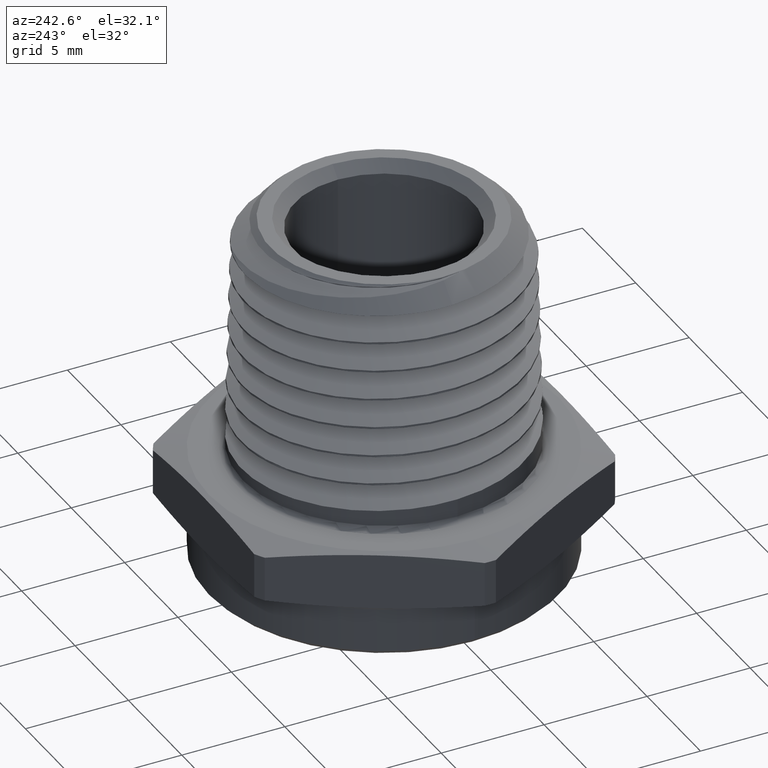
[diagram: clean part render]
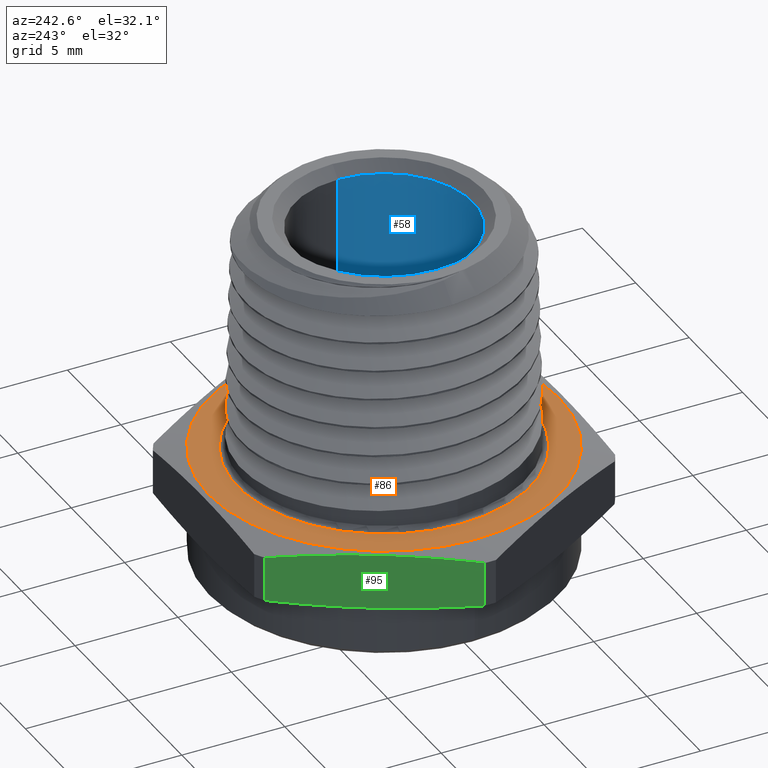
[diagram: same view with three faces highlighted in distinct colors, each labeled with its STEP entity id]
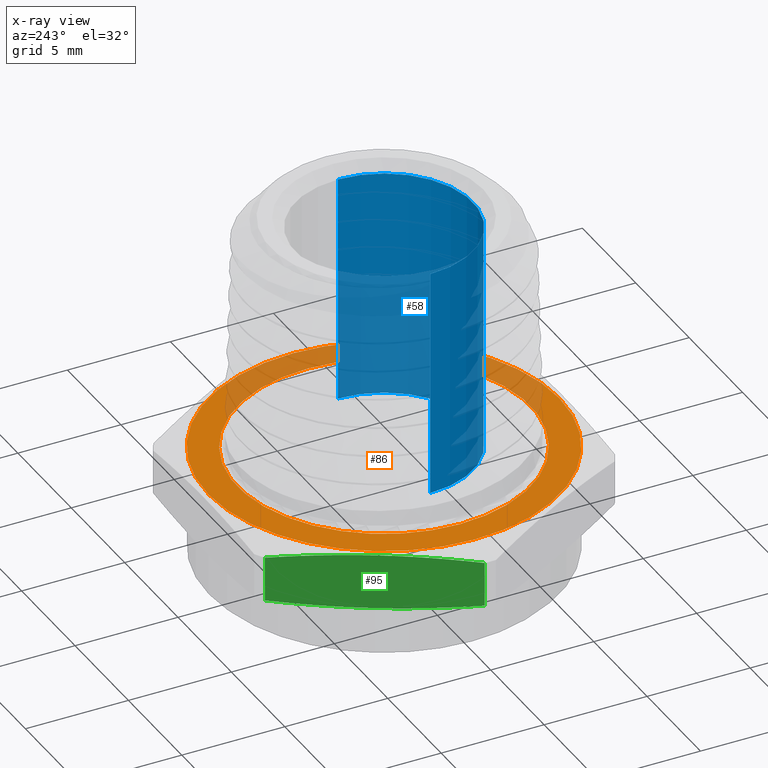
[diagram: x-ray of the same camera — body ghosted, the three highlighted faces saturated]
A machine part, auxiliary view with three faces highlighted in distinct colors.
The next image is the same camera in x-ray (body ghosted, the three faces saturated) — at least one of them is partly hidden behind the body in this view.
Their STEP definitions:

[orange] entity #86 — the highlighted planar face has unit normal (0, 0, 1).
#86 = ADVANCED_FACE ( 'NONE', ( #913, #914 ), #971, .T. ) ;
#153 = EDGE_CURVE ( 'NONE', #566, #567, #1995, .T. ) ;
#185 = EDGE_CURVE ( 'NONE', #572, #573, #2013, .T. ) ;
#186 = EDGE_CURVE ( 'NONE', #567, #566, #2012, .T. ) ;
#234 = EDGE_CURVE ( 'NONE', #573, #572, #2064, .T. ) ;
#513 = ORIENTED_EDGE ( 'NONE', *, *, #153, .T. ) ;
#514 = ORIENTED_EDGE ( 'NONE', *, *, #185, .F. ) ;
#515 = ORIENTED_EDGE ( 'NONE', *, *, #234, .F. ) ;
#534 = ORIENTED_EDGE ( 'NONE', *, *, #186, .T. ) ;
#566 = VERTEX_POINT ( 'NONE', #4101 ) ;
#567 = VERTEX_POINT ( 'NONE', #4102 ) ;
#572 = VERTEX_POINT ( 'NONE', #4099 ) ;
#573 = VERTEX_POINT ( 'NONE', #4106 ) ;
#684 = EDGE_LOOP ( 'NONE', ( #513, #534 ) ) ;
#685 = EDGE_LOOP ( 'NONE', ( #515, #514 ) ) ;
#817 = AXIS2_PLACEMENT_3D ( 'NONE', #969, #967, #973 ) ;
#864 = AXIS2_PLACEMENT_3D ( 'NONE', #1790, #1791, #1792 ) ;
#869 = AXIS2_PLACEMENT_3D ( 'NONE', #2754, #2755, #2756 ) ;
#870 = AXIS2_PLACEMENT_3D ( 'NONE', #2758, #2759, #2760 ) ;
#913 = FACE_OUTER_BOUND ( 'NONE', #685, .T. ) ;
#914 = FACE_BOUND ( 'NONE', #684, .T. ) ;
#967 = DIRECTION ( 'NONE',  ( -0.0000000000000000000, 0.0000000000000000000, 1.000000000000000000 ) ) ;
#969 = CARTESIAN_POINT ( 'NONE',  ( -0.1991858428704206800, -0.3449999999999998600, 0.1100000000000000000 ) ) ;
#971 = PLANE ( 'NONE',  #817 ) ;
#973 = DIRECTION ( 'NONE',  ( 1.000000000000000000, 0.0000000000000000000, 0.0000000000000000000 ) ) ;
#1790 = CARTESIAN_POINT ( 'NONE',  ( 0.0000000000000000000, 0.0000000000000000000, 0.1100000000000000000 ) ) ;
#1791 = DIRECTION ( 'NONE',  ( 0.0000000000000000000, -0.0000000000000000000, -1.000000000000000000 ) ) ;
#1792 = DIRECTION ( 'NONE',  ( 1.000000000000000000, 0.0000000000000000000, 0.0000000000000000000 ) ) ;
#1995 = CIRCLE ( 'NONE', #864, 0.2800000000000000300 ) ;
#2012 = CIRCLE ( 'NONE', #870, 0.2800000000000000300 ) ;
#2013 = CIRCLE ( 'NONE', #869, 0.3350000000000000200 ) ;
#2064 = CIRCLE ( 'NONE', #3689, 0.3350000000000000200 ) ;
#2754 = CARTESIAN_POINT ( 'NONE',  ( 1.347111479062086200E-017, 0.0000000000000000000, 0.1099999999999999700 ) ) ;
#2755 = DIRECTION ( 'NONE',  ( -1.224646799147351200E-016, -0.0000000000000000000, -1.000000000000000000 ) ) ;
#2756 = DIRECTION ( 'NONE',  ( -1.000000000000000000, 0.0000000000000000000, 1.019346266292635500E-016 ) ) ;
#2758 = CARTESIAN_POINT ( 'NONE',  ( 0.0000000000000000000, 0.0000000000000000000, 0.1100000000000000000 ) ) ;
#2759 = DIRECTION ( 'NONE',  ( 0.0000000000000000000, -0.0000000000000000000, -1.000000000000000000 ) ) ;
#2760 = DIRECTION ( 'NONE',  ( 1.000000000000000000, 0.0000000000000000000, 0.0000000000000000000 ) ) ;
#3396 = CARTESIAN_POINT ( 'NONE',  ( 1.347111479062086200E-017, 0.0000000000000000000, 0.1099999999999999700 ) ) ;
#3397 = DIRECTION ( 'NONE',  ( -1.224646799147351200E-016, -0.0000000000000000000, -1.000000000000000000 ) ) ;
#3398 = DIRECTION ( 'NONE',  ( -1.000000000000000000, 0.0000000000000000000, 1.019346266292635500E-016 ) ) ;
#3689 = AXIS2_PLACEMENT_3D ( 'NONE', #3396, #3397, #3398 ) ;
#4099 = CARTESIAN_POINT ( 'NONE',  ( 0.3350000000000000200, 4.102566777143634000E-017, 0.1099999999999999300 ) ) ;
#4101 = CARTESIAN_POINT ( 'NONE',  ( 0.2800000000000000300, 0.0000000000000000000, 0.1100000000000000300 ) ) ;
#4102 = CARTESIAN_POINT ( 'NONE',  ( -0.2800000000000000300, 3.429011037612588800E-017, 0.1100000000000000300 ) ) ;
#4106 = CARTESIAN_POINT ( 'NONE',  ( -0.3350000000000000200, 0.0000000000000000000, 0.1100000000000000000 ) ) ;

[blue] entity #58 — the highlighted cylindrical surface (partial cylindrical patch) has radius 4.318 mm, axis along (-0, -0, -1).
#58 = ADVANCED_FACE ( 'NONE', ( #748 ), #749, .F. ) ;
#134 = EDGE_CURVE ( 'NONE', #509, #541, #1323, .T. ) ;
#138 = EDGE_CURVE ( 'NONE', #509, #550, #1328, .T. ) ;
#139 = EDGE_CURVE ( 'NONE', #550, #555, #1329, .T. ) ;
#140 = EDGE_CURVE ( 'NONE', #541, #555, #1333, .T. ) ;
#509 = VERTEX_POINT ( 'NONE', #4066 ) ;
#541 = VERTEX_POINT ( 'NONE', #4080 ) ;
#550 = VERTEX_POINT ( 'NONE', #4086 ) ;
#555 = VERTEX_POINT ( 'NONE', #4091 ) ;
#659 = EDGE_LOOP ( 'NONE', ( #773, #775, #777, #776 ) ) ;
#748 = FACE_OUTER_BOUND ( 'NONE', #659, .T. ) ;
#749 = CYLINDRICAL_SURFACE ( 'NONE', #790, 0.1699999999999999800 ) ;
#773 = ORIENTED_EDGE ( 'NONE', *, *, #134, .F. ) ;
#775 = ORIENTED_EDGE ( 'NONE', *, *, #138, .T. ) ;
#776 = ORIENTED_EDGE ( 'NONE', *, *, #140, .F. ) ;
#777 = ORIENTED_EDGE ( 'NONE', *, *, #139, .T. ) ;
#790 = AXIS2_PLACEMENT_3D ( 'NONE', #5410, #5411, #5409 ) ;
#857 = AXIS2_PLACEMENT_3D ( 'NONE', #1745, #1746, #1747 ) ;
#859 = AXIS2_PLACEMENT_3D ( 'NONE', #1759, #1760, #1761 ) ;
#1323 = CIRCLE ( 'NONE', #857, 0.1699999999999999800 ) ;
#1328 = LINE ( 'NONE', #1749, #1332 ) ;
#1329 = CIRCLE ( 'NONE', #859, 0.1699999999999999800 ) ;
#1332 = VECTOR ( 'NONE', #1755, 39.37007874015748100 ) ;
#1333 = LINE ( 'NONE', #1756, #1335 ) ;
#1335 = VECTOR ( 'NONE', #1754, 39.37007874015748100 ) ;
#1745 = CARTESIAN_POINT ( 'NONE',  ( 7.944211343352838500E-017, 0.0000000000000000000, 0.5500000000000000400 ) ) ;
#1746 = DIRECTION ( 'NONE',  ( -1.241027080502703100E-016, -0.0000000000000000000, -1.000000000000000000 ) ) ;
#1747 = DIRECTION ( 'NONE',  ( -1.000000000000000000, 0.0000000000000000000, 0.0000000000000000000 ) ) ;
#1749 = CARTESIAN_POINT ( 'NONE',  ( 0.1699999999999999800, 2.081899558550500500E-017, -0.1000000000000000200 ) ) ;
#1754 = DIRECTION ( 'NONE',  ( -1.241027080502703100E-016, -0.0000000000000000000, -1.000000000000000000 ) ) ;
#1755 = DIRECTION ( 'NONE',  ( -1.241027080502703100E-016, -0.0000000000000000000, -1.000000000000000000 ) ) ;
#1756 = CARTESIAN_POINT ( 'NONE',  ( -0.1699999999999999800, 0.0000000000000000000, -0.09999999999999999200 ) ) ;
#1759 = CARTESIAN_POINT ( 'NONE',  ( 2.496102459945970600E-017, 0.0000000000000000000, 0.1109999999999999700 ) ) ;
#1760 = DIRECTION ( 'NONE',  ( -1.241027080502703100E-016, -0.0000000000000000000, -1.000000000000000000 ) ) ;
#1761 = DIRECTION ( 'NONE',  ( 1.000000000000000000, 0.0000000000000000000, -1.004355880023626300E-016 ) ) ;
#4066 = CARTESIAN_POINT ( 'NONE',  ( 0.1700000000000000700, 2.081899558550500800E-017, 0.5500000000000000400 ) ) ;
#4080 = CARTESIAN_POINT ( 'NONE',  ( -0.1699999999999999300, 0.0000000000000000000, 0.5500000000000000400 ) ) ;
#4086 = CARTESIAN_POINT ( 'NONE',  ( 0.1700000000000000400, 2.081899558550500500E-017, 0.1109999999999999600 ) ) ;
#4091 = CARTESIAN_POINT ( 'NONE',  ( -0.1699999999999999600, 0.0000000000000000000, 0.1109999999999999900 ) ) ;
#5409 = DIRECTION ( 'NONE',  ( -1.000000000000000000, 0.0000000000000000000, 1.004355880023626300E-016 ) ) ;
#5410 = CARTESIAN_POINT ( 'NONE',  ( -1.224646799147327800E-018, 0.0000000000000000000, -0.1000000000000000100 ) ) ;
#5411 = DIRECTION ( 'NONE',  ( -1.241027080502703100E-016, -0.0000000000000000000, -1.000000000000000000 ) ) ;

[green] entity #95 — the highlighted planar face has unit normal (0.866, -0.5, 0).
#4 = B_SPLINE_CURVE_WITH_KNOTS ( 'NONE', 3,
 ( #3424, #3419, #3418, #3425, #3426 ),
 .UNSPECIFIED., .F., .F.,
 ( 4, 1, 4 ),
 ( 1.975061655753539000E-006, 0.004749162338215338000, 0.009496349614774921400 ),
 .UNSPECIFIED. ) ;
#9 = B_SPLINE_CURVE_WITH_KNOTS ( 'NONE', 3,
 ( #3369, #3364, #3365, #3370, #3371 ),
 .UNSPECIFIED., .F., .F.,
 ( 4, 1, 4 ),
 ( 1.975061656148175500E-006, 0.004749162338215731800, 0.009496349614775315100 ),
 .UNSPECIFIED. ) ;
#95 = ADVANCED_FACE ( 'NONE', ( #959 ), #998, .F. ) ;
#191 = EDGE_CURVE ( 'NONE', #575, #586, #2018, .T. ) ;
#202 = EDGE_CURVE ( 'NONE', #585, #569, #2037, .T. ) ;
#227 = EDGE_CURVE ( 'NONE', #569, #575, #9, .T. ) ;
#241 = EDGE_CURVE ( 'NONE', #586, #585, #4, .T. ) ;
#365 = ORIENTED_EDGE ( 'NONE', *, *, #227, .T. ) ;
#366 = ORIENTED_EDGE ( 'NONE', *, *, #191, .T. ) ;
#367 = ORIENTED_EDGE ( 'NONE', *, *, #241, .T. ) ;
#368 = ORIENTED_EDGE ( 'NONE', *, *, #202, .T. ) ;
#569 = VERTEX_POINT ( 'NONE', #4104 ) ;
#575 = VERTEX_POINT ( 'NONE', #4108 ) ;
#585 = VERTEX_POINT ( 'NONE', #4118 ) ;
#586 = VERTEX_POINT ( 'NONE', #4119 ) ;
#697 = EDGE_LOOP ( 'NONE', ( #365, #366, #367, #368 ) ) ;
#825 = AXIS2_PLACEMENT_3D ( 'NONE', #996, #1000, #1001 ) ;
#959 = FACE_OUTER_BOUND ( 'NONE', #697, .T. ) ;
#996 = CARTESIAN_POINT ( 'NONE',  ( -0.1991858428704207700, 0.3450000000000000300, 0.1100000000000000000 ) ) ;
#998 = PLANE ( 'NONE',  #825 ) ;
#1000 = DIRECTION ( 'NONE',  ( 0.8660254037844386000, -0.5000000000000002200, 0.0000000000000000000 ) ) ;
#1001 = DIRECTION ( 'NONE',  ( 0.5000000000000002200, 0.8660254037844386000, 0.0000000000000000000 ) ) ;
#2018 = LINE ( 'NONE', #2766, #2022 ) ;
#2022 = VECTOR ( 'NONE', #2772, 39.37007874015748100 ) ;
#2037 = LINE ( 'NONE', #2798, #2040 ) ;
#2040 = VECTOR ( 'NONE', #2799, 39.37007874015748100 ) ;
#2766 = CARTESIAN_POINT ( 'NONE',  ( -0.3922273327418436300, 0.01064233157390311400, 1.144414902203096000E-017 ) ) ;
#2772 = DIRECTION ( 'NONE',  ( 1.224646799147351200E-016, 0.0000000000000000000, 1.000000000000000000 ) ) ;
#2798 = CARTESIAN_POINT ( 'NONE',  ( -0.2053301958694190600, 0.3343576684260970400, -1.144414902203096000E-017 ) ) ;
#2799 = DIRECTION ( 'NONE',  ( -1.224646799147351200E-016, -0.0000000000000000000, -1.000000000000000000 ) ) ;
#3364 = CARTESIAN_POINT ( 'NONE',  ( -0.2364797186814896200, 0.2804051122840646200, 0.005887175410780998300 ) ) ;
#3365 = CARTESIAN_POINT ( 'NONE',  ( -0.2987787643056310500, 0.1725000000000001000, -0.001636044177380791000 ) ) ;
#3369 = CARTESIAN_POINT ( 'NONE',  ( -0.2053301958694190600, 0.3343576684260970400, 0.01219472825828593100 ) ) ;
#3370 = CARTESIAN_POINT ( 'NONE',  ( -0.3610778099297727900, 0.06459488771593539800, 0.005887175410781007000 ) ) ;
#3371 = CARTESIAN_POINT ( 'NONE',  ( -0.3922273327418436800, 0.01064233157390311600, 0.01219472825828593100 ) ) ;
#3418 = CARTESIAN_POINT ( 'NONE',  ( -0.2987787643056311600, 0.1725000000000000100, 0.1116360441773807900 ) ) ;
#3419 = CARTESIAN_POINT ( 'NONE',  ( -0.3610778099297727300, 0.06459488771593538400, 0.1041128245892189900 ) ) ;
#3424 = CARTESIAN_POINT ( 'NONE',  ( -0.3922273327418436800, 0.01064233157390311600, 0.09780527174171406400 ) ) ;
#3425 = CARTESIAN_POINT ( 'NONE',  ( -0.2364797186814897000, 0.2804051122840648400, 0.1041128245892189900 ) ) ;
#3426 = CARTESIAN_POINT ( 'NONE',  ( -0.2053301958694190600, 0.3343576684260970400, 0.09780527174171402300 ) ) ;
#4104 = CARTESIAN_POINT ( 'NONE',  ( -0.2053301958694190600, 0.3343576684260970400, 0.01219472825828593100 ) ) ;
#4108 = CARTESIAN_POINT ( 'NONE',  ( -0.3922273327418436800, 0.01064233157390311600, 0.01219472825828593100 ) ) ;
#4118 = CARTESIAN_POINT ( 'NONE',  ( -0.2053301958694190600, 0.3343576684260970400, 0.09780527174171402300 ) ) ;
#4119 = CARTESIAN_POINT ( 'NONE',  ( -0.3922273327418436800, 0.01064233157390311600, 0.09780527174171406400 ) ) ;